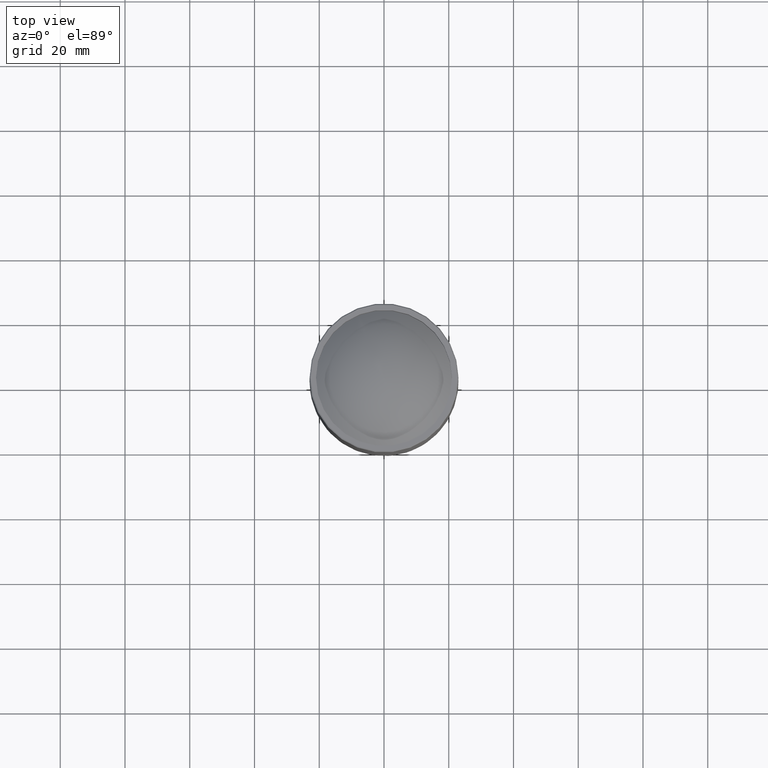
[diagram: clean part render]
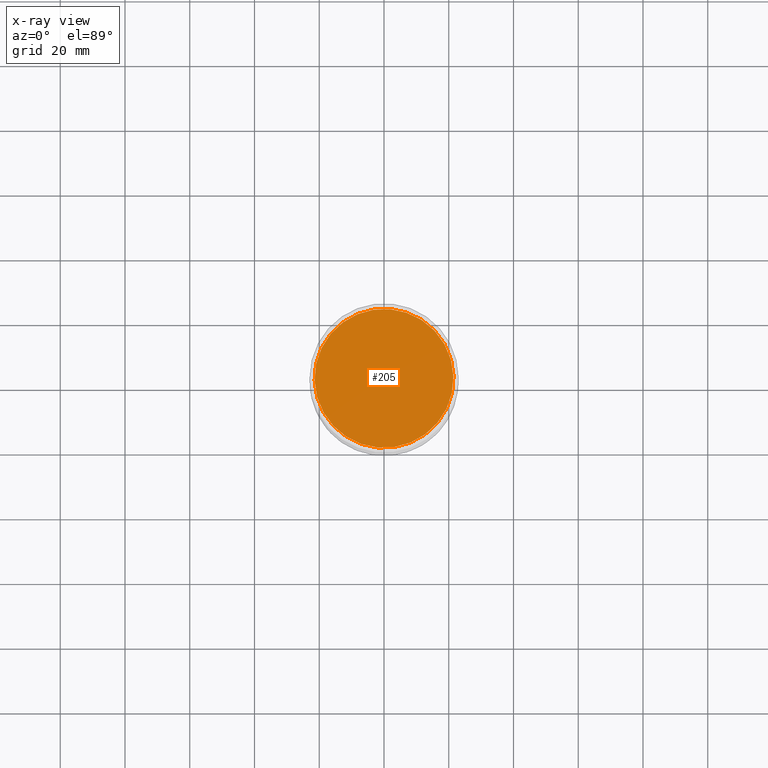
[diagram: x-ray — body ghosted, one internal face saturated and labeled with its STEP entity id]
A machine part, top view, then the same camera in x-ray: the body is ghosted and one INTERNAL B-rep face — a face not visible from any outside direction — is saturated and labeled: STEP entity #205.
In plain terms, the highlighted planar face has unit normal (-0, 0, 1).
Its self-contained STEP definition (entity closure, byte-faithful):
#7 = DIRECTION ( 'NONE',  ( 0.3830490080632378835, -0.9237280213470681067, 1.218036320871736945E-16 ) ) ;
#29 = DIRECTION ( 'NONE',  ( -1.232595164407830946E-32, -1.318609258053555361E-16, -1.000000000000000000 ) ) ;
#159 = PLANE ( 'NONE',  #873 ) ;
#205 = ADVANCED_FACE ( 'NONE', ( #593 ), #159, .F. ) ;
#290 = EDGE_LOOP ( 'NONE', ( #928 ) ) ;
#340 = EDGE_CURVE ( 'NONE', #485, #485, #449, .T. ) ;
#380 = CARTESIAN_POINT ( 'NONE',  ( -7.311375404722625149, -63.84507486142585009, -512.0000000000000000 ) ) ;
#449 = CIRCLE ( 'NONE', #579, 21.45211006975307555 ) ;
#485 = VERTEX_POINT ( 'NONE', #918 ) ;
#579 = AXIS2_PLACEMENT_3D ( 'NONE', #618, #29, #896 ) ;
#593 = FACE_OUTER_BOUND ( 'NONE', #290, .T. ) ;
#618 = CARTESIAN_POINT ( 'NONE',  ( 0.000000000000000000, 6.938893903907228378E-15, -512.0000000000000000 ) ) ;
#726 = DIRECTION ( 'NONE',  ( -1.848892746611746419E-32, 1.318609258053556101E-16, 1.000000000000000000 ) ) ;
#873 = AXIS2_PLACEMENT_3D ( 'NONE', #380, #726, #7 ) ;
#896 = DIRECTION ( 'NONE',  ( 0.3830490080632379390, -0.9237280213470682178, 0.000000000000000000 ) ) ;
#918 = CARTESIAN_POINT ( 'NONE',  ( 8.217209483082314136, -19.81591518845251798, -512.0000000000000000 ) ) ;
#928 = ORIENTED_EDGE ( 'NONE', *, *, #340, .T. ) ;